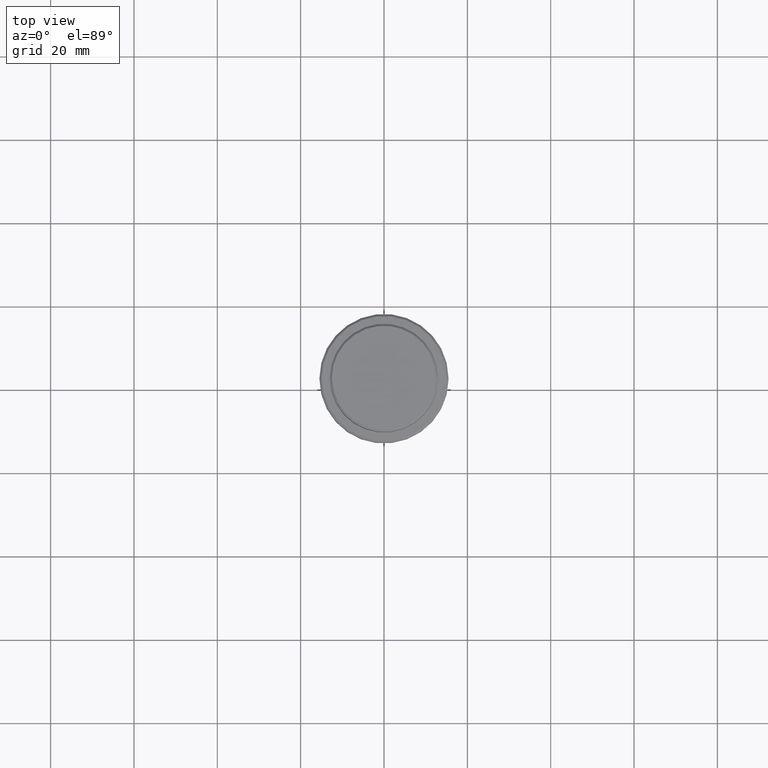
[diagram: clean part render]
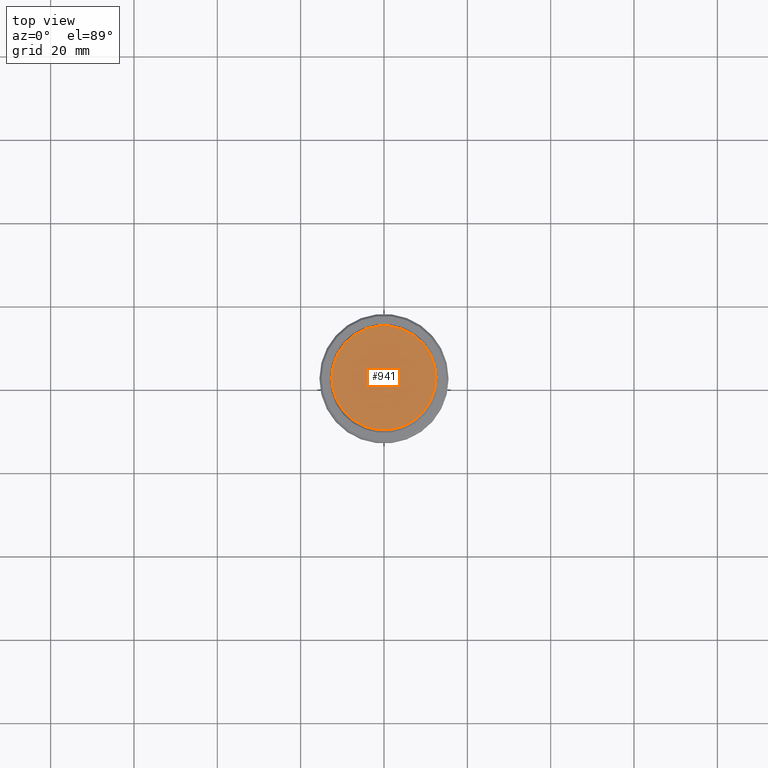
[diagram: same view with one face highlighted and labeled with its STEP entity id]
A machine part, top view. The second image highlights one B-rep face of the part: STEP entity #941.
In plain terms, the highlighted planar face has unit normal (0, -0, 1).
Its self-contained STEP definition (entity closure, byte-faithful):
#48 = CARTESIAN_POINT ( 'NONE',  ( 0.000000000000000000, 0.000000000000000000, 0.000000000000000000 ) ) ;
#236 = CIRCLE ( 'NONE', #398, 12.50000000000001243 ) ;
#260 = AXIS2_PLACEMENT_3D ( 'NONE', #912, #1249, #377 ) ;
#377 = DIRECTION ( 'NONE',  ( 1.000000000000000000, 0.000000000000000000, 0.000000000000000000 ) ) ;
#398 = AXIS2_PLACEMENT_3D ( 'NONE', #48, #1237, #607 ) ;
#535 = EDGE_CURVE ( 'NONE', #543, #957, #236, .T. ) ;
#543 = VERTEX_POINT ( 'NONE', #1049 ) ;
#588 = ORIENTED_EDGE ( 'NONE', *, *, #535, .T. ) ;
#607 = DIRECTION ( 'NONE',  ( 1.000000000000000000, 0.000000000000000000, 0.000000000000000000 ) ) ;
#619 = CARTESIAN_POINT ( 'NONE',  ( 12.50000000000001243, 1.561424668912876097E-15, 0.000000000000000000 ) ) ;
#737 = DIRECTION ( 'NONE',  ( 1.000000000000000000, 0.000000000000000000, 0.000000000000000000 ) ) ;
#828 = FACE_OUTER_BOUND ( 'NONE', #1238, .T. ) ;
#912 = CARTESIAN_POINT ( 'NONE',  ( 0.000000000000000000, 0.000000000000000000, 0.000000000000000000 ) ) ;
#941 = ADVANCED_FACE ( 'NONE', ( #828 ), #948, .T. ) ;
#948 = PLANE ( 'NONE',  #1224 ) ;
#957 = VERTEX_POINT ( 'NONE', #619 ) ;
#1049 = CARTESIAN_POINT ( 'NONE',  ( -12.50000000000001243, 0.000000000000000000, 0.000000000000000000 ) ) ;
#1057 = DIRECTION ( 'NONE',  ( 0.000000000000000000, -0.000000000000000000, 1.000000000000000000 ) ) ;
#1061 = CIRCLE ( 'NONE', #260, 12.50000000000001243 ) ;
#1171 = CARTESIAN_POINT ( 'NONE',  ( 0.000000000000000000, 0.000000000000000000, 0.000000000000000000 ) ) ;
#1199 = ORIENTED_EDGE ( 'NONE', *, *, #1201, .T. ) ;
#1201 = EDGE_CURVE ( 'NONE', #957, #543, #1061, .T. ) ;
#1224 = AXIS2_PLACEMENT_3D ( 'NONE', #1171, #1057, #737 ) ;
#1237 = DIRECTION ( 'NONE',  ( -0.000000000000000000, -0.000000000000000000, 1.000000000000000000 ) ) ;
#1238 = EDGE_LOOP ( 'NONE', ( #588, #1199 ) ) ;
#1249 = DIRECTION ( 'NONE',  ( -0.000000000000000000, -0.000000000000000000, 1.000000000000000000 ) ) ;